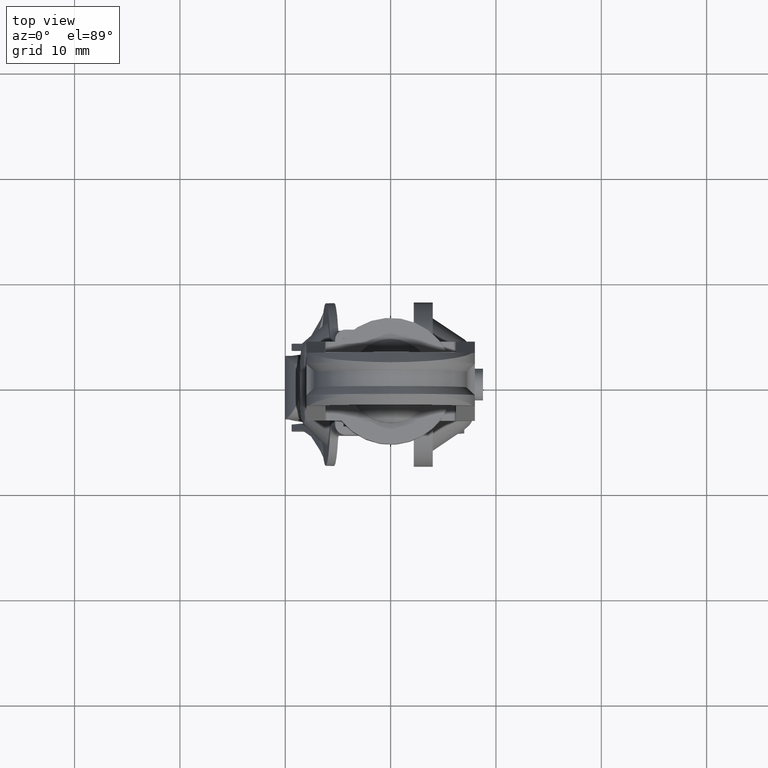
[diagram: clean part render]
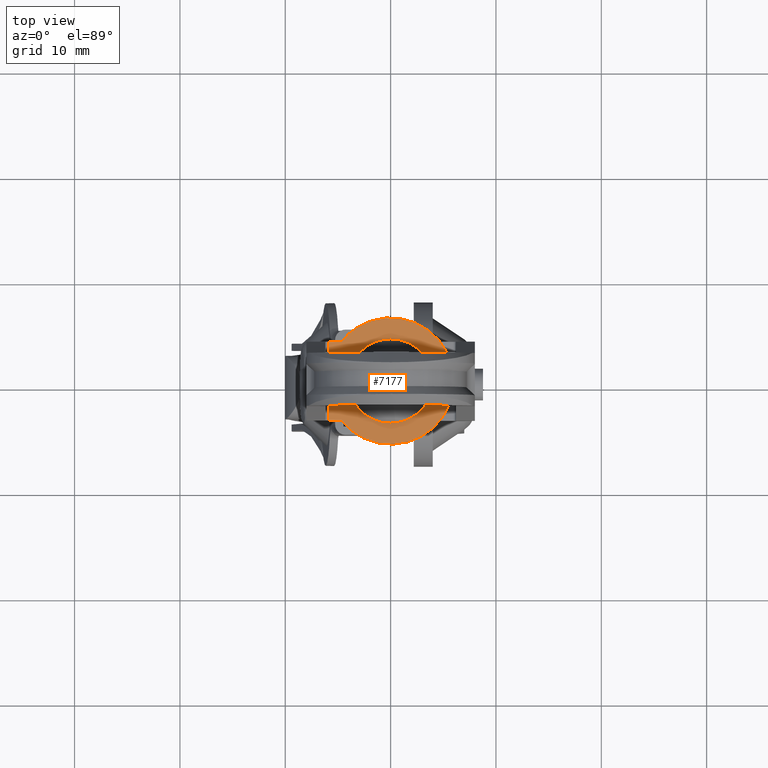
[diagram: same view with one face highlighted and labeled with its STEP entity id]
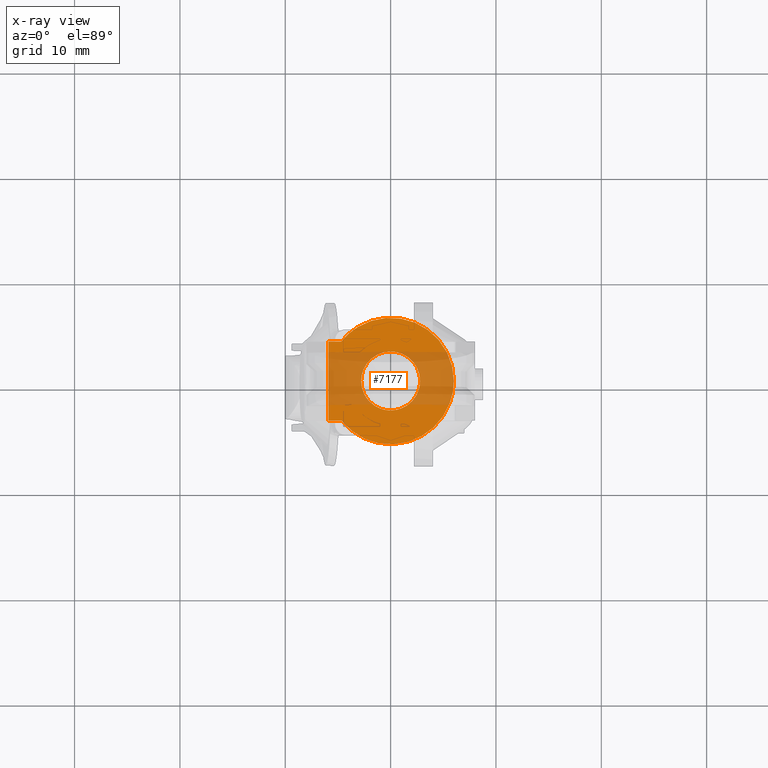
[diagram: x-ray of the same camera — body ghosted, the highlighted face saturated]
A machine part, top view. The second image highlights one B-rep face of the part: STEP entity #7177.
The next image is the same camera in x-ray: the body ghosted, the highlighted face saturated — about 39% of this face is hidden behind the body in this view.
In plain terms, the highlighted face is a freeform B-spline surface patch.
Its self-contained STEP definition (entity closure, byte-faithful):
#4660=CARTESIAN_POINT('',(1.540247556315254,-2.338298312701979,10.099996999999750));
#4661=VERTEX_POINT('',#4660);
#4662=CARTESIAN_POINT('',(2.800000000000000,0.0,10.099996999999741));
#4663=VERTEX_POINT('',#4662);
#4664=CARTESIAN_POINT('',(1.540247556315254,-2.338298312701979,10.099996999999750));
#4665=CARTESIAN_POINT('',(1.841438755457194,-2.140367419640170,10.099996999999750));
#4666=CARTESIAN_POINT('',(2.207910285492275,-1.780236880823062,10.099996999999750));
#4667=CARTESIAN_POINT('',(2.577442850391196,-1.142220724493108,10.099996999999769));
#4668=CARTESIAN_POINT('',(2.757933565933656,-0.605360054045809,10.099996999999730));
#4669=CARTESIAN_POINT('',(2.800013173863562,-0.187367643019709,10.099996999999780));
#4670=CARTESIAN_POINT('',(2.800000000000000,0.0,10.099996999999741));
#4671=B_SPLINE_CURVE_WITH_KNOTS('',3,(#4664,#4665,#4666,#4667,#4668,#4669,#4670),.UNSPECIFIED.,.F.,.U.,(4,1,1,1,4),(0.000000047405410,1.080997337559521,1.513384830774860,2.205226029804059,2.767341232954820),.UNSPECIFIED.);
#4672=EDGE_CURVE('',#4661,#4663,#4671,.T.);
#4674=CARTESIAN_POINT('',(-0.000001192533396,2.799999999999746,10.099996999999741));
#4675=VERTEX_POINT('',#4674);
#4676=CARTESIAN_POINT('',(2.800000000000000,0.0,10.099996999999741));
#4677=CARTESIAN_POINT('',(2.800029525841339,0.194713974006567,10.099996999999750));
#4678=CARTESIAN_POINT('',(2.759208171752840,0.584125558272842,10.099996999999741));
#4679=CARTESIAN_POINT('',(2.560757871362489,1.197757681199375,10.099996999999750));
#4680=CARTESIAN_POINT('',(2.203005007664694,1.778329784882254,10.099996999999741));
#4681=CARTESIAN_POINT('',(1.743294052735605,2.215957191572622,10.099996999999730));
#4682=CARTESIAN_POINT('',(1.226786347510438,2.538599771048866,10.099996999999760));
#4683=CARTESIAN_POINT('',(0.664309999588796,2.747686446762956,10.099996999999730));
#4684=CARTESIAN_POINT('',(0.217617815957019,2.800037290570791,10.099996999999760));
#4685=CARTESIAN_POINT('',(-0.000001192533396,2.799999999999746,10.099996999999741));
#4686=B_SPLINE_CURVE_WITH_KNOTS('',3,(#4676,#4677,#4678,#4679,#4680,#4681,#4682,#4683,#4684,#4685),.UNSPECIFIED.,.F.,.U.,(4,1,1,1,1,1,1,4),(0.000000111463913,0.584139614621590,1.168287705452274,1.924261954397942,2.611442760970738,3.058156659768348,3.745399989078884,4.398257984197213),.UNSPECIFIED.);
#4687=EDGE_CURVE('',#4663,#4675,#4686,.T.);
#4689=CARTESIAN_POINT('',(-2.800000000000000,0.0,10.099996999999741));
#4690=VERTEX_POINT('',#4689);
#4691=CARTESIAN_POINT('',(-0.000001192533396,2.799999999999746,10.099996999999741));
#4692=CARTESIAN_POINT('',(-0.194714826966915,2.800029120714600,10.099996999999741));
#4693=CARTESIAN_POINT('',(-0.584133540457677,2.759220917424074,10.099996999999741));
#4694=CARTESIAN_POINT('',(-1.077192314974533,2.599691280633737,10.099996999999750));
#4695=CARTESIAN_POINT('',(-1.513944455999452,2.369634911180087,10.099996999999750));
#4696=CARTESIAN_POINT('',(-1.983090445635577,2.017413503477469,10.099996999999719));
#4697=CARTESIAN_POINT('',(-2.406256226516034,1.495216179459351,10.099996999999711));
#4698=CARTESIAN_POINT('',(-2.723748919073050,0.778773428808780,10.099996999999760));
#4699=CARTESIAN_POINT('',(-2.800148690532048,0.286357568094849,10.099996999999711));
#4700=CARTESIAN_POINT('',(-2.800000000000000,0.0,10.099996999999741));
#4701=B_SPLINE_CURVE_WITH_KNOTS('',3,(#4691,#4692,#4693,#4694,#4695,#4696,#4697,#4698,#4699,#4700),.UNSPECIFIED.,.F.,.U.,(4,1,1,1,1,1,1,4),(0.000000111879105,0.584139436210970,1.168287348766363,1.546271344044668,2.061700736124921,2.920708536634645,3.539229288906177,4.398256639925713),.UNSPECIFIED.);
#4702=EDGE_CURVE('',#4675,#4690,#4701,.T.);
#4704=CARTESIAN_POINT('',(-2.033574808459145,-1.924726430269151,10.099996999999741));
#4705=VERTEX_POINT('',#4704);
#4706=CARTESIAN_POINT('',(-2.800000000000000,0.0,10.099996999999741));
#4707=CARTESIAN_POINT('',(-2.800051502591296,-0.243162359115734,10.099996999999750));
#4708=CARTESIAN_POINT('',(-2.731974892531051,-0.762648819776768,10.099996999999719));
#4709=CARTESIAN_POINT('',(-2.447875789474823,-1.418925125805831,10.099996999999810));
#4710=CARTESIAN_POINT('',(-2.162734052801049,-1.788266687041604,10.099996999999670));
#4711=CARTESIAN_POINT('',(-2.033574808459145,-1.924726430269151,10.099996999999741));
#4712=B_SPLINE_CURVE_WITH_KNOTS('',3,(#4706,#4707,#4708,#4709,#4710,#4711),.UNSPECIFIED.,.F.,.U.,(4,1,1,4),(0.000000023743279,0.729494305868941,1.558453728621393,2.122150013664741),.UNSPECIFIED.);
#4713=EDGE_CURVE('',#4690,#4705,#4712,.T.);
#4790=CARTESIAN_POINT('',(0.000001192533366,-2.799999999999746,10.099996999999741));
#4791=VERTEX_POINT('',#4790);
#4792=CARTESIAN_POINT('',(0.000001192533366,-2.799999999999746,10.099996999999741));
#4793=CARTESIAN_POINT('',(0.254842135699140,-2.800088901521713,10.099996999999760));
#4794=CARTESIAN_POINT('',(0.798429879743263,-2.725249698811526,10.099996999999730));
#4795=CARTESIAN_POINT('',(1.299128977858174,-2.497297875985524,10.099996999999760));
#4796=CARTESIAN_POINT('',(1.540247556315254,-2.338298312701979,10.099996999999750));
#4797=B_SPLINE_CURVE_WITH_KNOTS('',3,(#4792,#4793,#4794,#4795,#4796),.UNSPECIFIED.,.F.,.U.,(4,1,4),(0.000000015839936,0.764508951177596,1.630937511146099),.UNSPECIFIED.);
#4798=EDGE_CURVE('',#4791,#4661,#4797,.T.);
#4822=CARTESIAN_POINT('',(-2.033574808459145,-1.924726430269151,10.099996999999741));
#4823=CARTESIAN_POINT('',(-1.805578376431014,-2.166032218126598,10.099996999999791));
#4824=CARTESIAN_POINT('',(-1.369060164578544,-2.487099830691273,10.099996999999640));
#4825=CARTESIAN_POINT('',(-0.651978459740541,-2.748224512492945,10.099996999999860));
#4826=CARTESIAN_POINT('',(-0.225243179204325,-2.800052989090263,10.099996999999670));
#4827=CARTESIAN_POINT('',(0.000001192533366,-2.799999999999746,10.099996999999741));
#4828=B_SPLINE_CURVE_WITH_KNOTS('',3,(#4822,#4823,#4824,#4825,#4826,#4827),.UNSPECIFIED.,.F.,.U.,(4,1,1,4),(0.000000029861722,0.995807646141350,1.600385928908220,2.276108358539105),.UNSPECIFIED.);
#4829=EDGE_CURVE('',#4705,#4791,#4828,.T.);
#6315=CARTESIAN_POINT('',(-4.687732946710650,3.745018000000000,10.099996999999799));
#6316=VERTEX_POINT('',#6315);
#6322=CARTESIAN_POINT('',(5.999999999999938,0.000000865057081,10.099996999999741));
#6323=VERTEX_POINT('',#6322);
#6324=CARTESIAN_POINT('',(5.999999999999938,0.000000865057081,10.099996999999741));
#6325=CARTESIAN_POINT('',(6.000082579779885,0.443384540947076,10.099996999999799));
#6326=CARTESIAN_POINT('',(5.911982738852029,1.233730708110206,10.099996999999640));
#6327=CARTESIAN_POINT('',(5.583010685669481,2.266195339861011,10.099996999999870));
#6328=CARTESIAN_POINT('',(5.156216792987258,3.111657027087182,10.099996999999661));
#6329=CARTESIAN_POINT('',(4.608150660743733,3.884463512858440,10.099996999999791));
#6330=CARTESIAN_POINT('',(3.968060574383690,4.530532003291319,10.099996999999860));
#6331=CARTESIAN_POINT('',(3.240233963663535,5.073132320522616,10.099996999999711));
#6332=CARTESIAN_POINT('',(2.307501710737903,5.583921723595378,10.099996999999799));
#6333=CARTESIAN_POINT('',(1.211898685072670,5.921007592460778,10.099996999999760));
#6334=CARTESIAN_POINT('',(0.113940541531530,6.021340956270573,10.099996999999780));
#6335=CARTESIAN_POINT('',(-0.831213019024819,5.966330797230156,10.099996999999780));
#6336=CARTESIAN_POINT('',(-1.720246400010144,5.774641937630832,10.099996999999760));
#6337=CARTESIAN_POINT('',(-2.674802813785295,5.402856255933770,10.099996999999890));
#6338=CARTESIAN_POINT('',(-3.704663460700717,4.785424355886997,10.099996999999640));
#6339=CARTESIAN_POINT('',(-4.362984738772448,4.151781542466924,10.099996999999579));
#6340=CARTESIAN_POINT('',(-4.687732946710650,3.745018000000000,10.099996999999799));
#6341=B_SPLINE_CURVE_WITH_KNOTS('',3,(#6324,#6325,#6326,#6327,#6328,#6329,#6330,#6331,#6332,#6333,#6334,#6335,#6336,#6337,#6338,#6339,#6340),.UNSPECIFIED.,.F.,.U.,(4,1,1,1,1,1,1,1,1,1,1,1,1,1,4),(0.000000173302077,1.330140313211068,2.371143755416593,3.238635795412456,4.163968760521678,5.204970221180581,5.956797274040685,6.882120554588571,8.385748561059771,9.368890652435642,10.178573038885929,11.219569409088800,12.087063839494411,13.243749216790601,14.805202522414049),.UNSPECIFIED.);
#6342=EDGE_CURVE('',#6323,#6316,#6341,.T.);
#6344=CARTESIAN_POINT('',(-4.687732946710650,-3.745018000000000,10.099996999999799));
#6345=VERTEX_POINT('',#6344);
#6346=CARTESIAN_POINT('',(-4.687732946710650,-3.745018000000000,10.099996999999799));
#6347=CARTESIAN_POINT('',(-4.314920305996892,-4.212112463743045,10.099996999999799));
#6348=CARTESIAN_POINT('',(-3.542508500057786,-4.927217720060596,10.099996999999821));
#6349=CARTESIAN_POINT('',(-2.274077359155204,-5.598991349485073,10.099996999999769));
#6350=CARTESIAN_POINT('',(-1.175838861979366,-5.914551168167407,10.099996999999821));
#6351=CARTESIAN_POINT('',(-0.214537654484421,-6.017148467774772,10.099996999999631));
#6352=CARTESIAN_POINT('',(0.712214967349413,-5.981692999146961,10.099996999999879));
#6353=CARTESIAN_POINT('',(1.794826693189615,-5.770834135178528,10.099996999999700));
#6354=CARTESIAN_POINT('',(2.975399551602409,-5.272170328196737,10.099996999999840));
#6355=CARTESIAN_POINT('',(3.961994811981538,-4.551189570624618,10.099996999999750));
#6356=CARTESIAN_POINT('',(4.691731494605748,-3.778159605023463,10.099996999999229));
#6357=CARTESIAN_POINT('',(5.261700478763213,-2.949427894848664,10.099997000000110));
#6358=CARTESIAN_POINT('',(5.652203034780414,-2.084494263856434,10.099996999999590));
#6359=CARTESIAN_POINT('',(5.930200845550143,-1.079499666493883,10.099996999999741));
#6360=CARTESIAN_POINT('',(6.000072616676050,-0.424100692837098,10.099996999999661));
#6361=CARTESIAN_POINT('',(5.999999999999938,0.000000865057081,10.099996999999741));
#6362=B_SPLINE_CURVE_WITH_KNOTS('',3,(#6346,#6347,#6348,#6349,#6350,#6351,#6352,#6353,#6354,#6355,#6356,#6357,#6358,#6359,#6360,#6361),.UNSPECIFIED.,.F.,.U.,(4,1,1,1,1,1,1,1,1,1,1,1,1,4),(0.000000173282112,1.792816812860647,3.122971731308113,4.279632940844826,5.204970829429792,6.014650759211031,7.055613069079182,8.501402911755584,9.831564426136598,10.699068685898890,11.682239337607029,12.838897700348950,13.532915808418331,14.805204252548361),.UNSPECIFIED.);
#6363=EDGE_CURVE('',#6345,#6323,#6362,.T.);
#6545=CARTESIAN_POINT('',(-5.900010000000000,3.745018000000000,10.099996999999799));
#6546=VERTEX_POINT('',#6545);
#6552=CARTESIAN_POINT('',(-5.900010000000000,3.745018000000000,10.099996999999799));
#6553=CARTESIAN_POINT('',(-4.687732946710650,3.745018000000000,10.099996999999799));
#6554=QUASI_UNIFORM_CURVE('',1,(#6552,#6553),.UNSPECIFIED.,.F.,.U.);
#6555=EDGE_CURVE('',#6546,#6316,#6554,.T.);
#6768=CARTESIAN_POINT('',(-5.900010000000000,-3.745018000000000,10.099996999999799));
#6769=VERTEX_POINT('',#6768);
#6770=CARTESIAN_POINT('',(-5.900010000000000,-3.745018000000000,10.099996999999799));
#6771=CARTESIAN_POINT('',(-4.687732946710650,-3.745018000000000,10.099996999999799));
#6772=QUASI_UNIFORM_CURVE('',1,(#6770,#6771),.UNSPECIFIED.,.F.,.U.);
#6773=EDGE_CURVE('',#6769,#6345,#6772,.T.);
#7149=CARTESIAN_POINT('',(-5.900010000000000,3.745018000000000,10.099996999999799));
#7150=CARTESIAN_POINT('',(-5.900010000000000,-3.745018000000000,10.099996999999799));
#7151=QUASI_UNIFORM_CURVE('',1,(#7149,#7150),.UNSPECIFIED.,.F.,.U.);
#7152=EDGE_CURVE('',#6546,#6769,#7151,.T.);
#7157=CARTESIAN_POINT('',(-6.494415588144248,-6.599187921472620,10.099996999999799));
#7158=CARTESIAN_POINT('',(6.594405800932948,-6.599187921472620,10.099996999999799));
#7159=CARTESIAN_POINT('',(-6.494415588144248,6.599193477376088,10.099996999999799));
#7160=CARTESIAN_POINT('',(6.594405800932948,6.599193477376088,10.099996999999799));
#7161=B_SPLINE_SURFACE_WITH_KNOTS('',1,1,((#7157,#7159),(#7158,#7160)),.UNSPECIFIED.,.F.,.F.,.U.,(2,2),(2,2),(0.0,13.088821389077200),(0.0,13.198381398848710),.UNSPECIFIED.);
#7162=ORIENTED_EDGE('',*,*,#6773,.T.);
#7163=ORIENTED_EDGE('',*,*,#6363,.T.);
#7164=ORIENTED_EDGE('',*,*,#6342,.T.);
#7165=ORIENTED_EDGE('',*,*,#6555,.F.);
#7166=ORIENTED_EDGE('',*,*,#7152,.T.);
#7167=EDGE_LOOP('',(#7162,#7163,#7164,#7165,#7166));
#7168=FACE_OUTER_BOUND('',#7167,.T.);
#7169=ORIENTED_EDGE('',*,*,#4687,.F.);
#7170=ORIENTED_EDGE('',*,*,#4672,.F.);
#7171=ORIENTED_EDGE('',*,*,#4798,.F.);
#7172=ORIENTED_EDGE('',*,*,#4829,.F.);
#7173=ORIENTED_EDGE('',*,*,#4713,.F.);
#7174=ORIENTED_EDGE('',*,*,#4702,.F.);
#7175=EDGE_LOOP('',(#7169,#7170,#7171,#7172,#7173,#7174));
#7176=FACE_BOUND('',#7175,.T.);
#7177=ADVANCED_FACE('',(#7168,#7176),#7161,.T.);